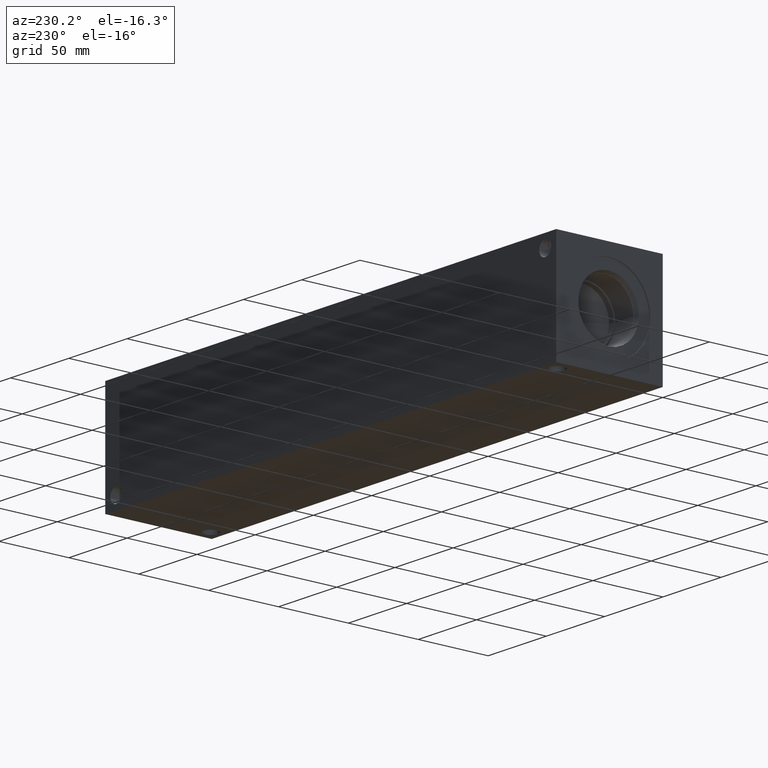
[diagram: clean part render]
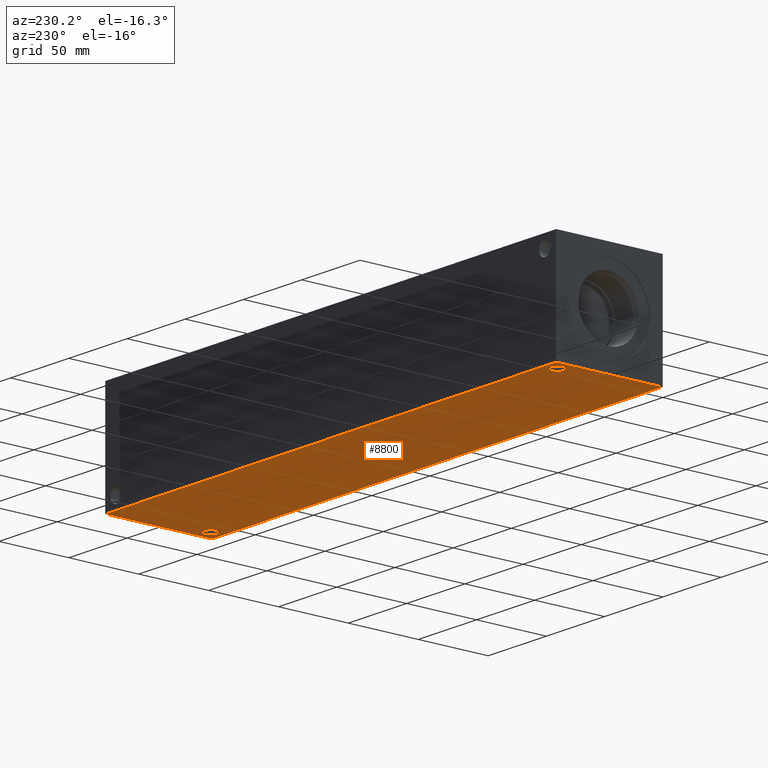
[diagram: same view with one face highlighted and labeled with its STEP entity id]
A machine part, auxiliary view. The second image highlights one B-rep face of the part: STEP entity #8800.
In plain terms, the highlighted planar face has unit normal (0, 0, 1).
Its self-contained STEP definition (entity closure, byte-faithful):
#295=CIRCLE('',#9282,5.1562);
#296=CIRCLE('',#9284,5.1562);
#418=FACE_BOUND('',#1734,.T.);
#419=FACE_BOUND('',#1735,.T.);
#1214=FACE_OUTER_BOUND('',#1733,.T.);
#1733=EDGE_LOOP('',(#7797,#7798,#7799,#7800));
#1734=EDGE_LOOP('',(#7801));
#1735=EDGE_LOOP('',(#7802));
#2498=LINE('',#15583,#3268);
#2501=LINE('',#15588,#3271);
#2503=LINE('',#15592,#3273);
#2505=LINE('',#15595,#3275);
#3268=VECTOR('',#11306,10.);
#3271=VECTOR('',#11311,10.);
#3273=VECTOR('',#11315,10.);
#3275=VECTOR('',#11319,10.);
#4038=VERTEX_POINT('',#15379);
#4039=VERTEX_POINT('',#15383);
#4097=VERTEX_POINT('',#15581);
#4098=VERTEX_POINT('',#15582);
#4099=VERTEX_POINT('',#15587);
#4100=VERTEX_POINT('',#15591);
#5233=EDGE_CURVE('',#4038,#4038,#295,.T.);
#5235=EDGE_CURVE('',#4039,#4039,#296,.T.);
#5327=EDGE_CURVE('',#4097,#4098,#2498,.T.);
#5330=EDGE_CURVE('',#4099,#4097,#2501,.T.);
#5332=EDGE_CURVE('',#4100,#4099,#2503,.T.);
#5334=EDGE_CURVE('',#4098,#4100,#2505,.T.);
#7797=ORIENTED_EDGE('',*,*,#5334,.F.);
#7798=ORIENTED_EDGE('',*,*,#5327,.F.);
#7799=ORIENTED_EDGE('',*,*,#5330,.F.);
#7800=ORIENTED_EDGE('',*,*,#5332,.F.);
#7801=ORIENTED_EDGE('',*,*,#5233,.T.);
#7802=ORIENTED_EDGE('',*,*,#5235,.T.);
#8041=PLANE('',#9393);
#8800=ADVANCED_FACE('',(#1214,#418,#419),#8041,.F.);
#9282=AXIS2_PLACEMENT_3D('',#15381,#11057,#11058);
#9284=AXIS2_PLACEMENT_3D('',#15385,#11062,#11063);
#9393=AXIS2_PLACEMENT_3D('',#15597,#11322,#11323);
#11057=DIRECTION('center_axis',(0.,0.,1.));
#11058=DIRECTION('ref_axis',(1.,0.,0.));
#11062=DIRECTION('center_axis',(0.,0.,1.));
#11063=DIRECTION('ref_axis',(1.,0.,0.));
#11306=DIRECTION('',(0.,-1.,0.));
#11311=DIRECTION('',(-1.,0.,0.));
#11315=DIRECTION('',(0.,1.,0.));
#11319=DIRECTION('',(1.,0.,0.));
#11322=DIRECTION('center_axis',(0.,0.,1.));
#11323=DIRECTION('ref_axis',(1.,0.,0.));
#15379=CARTESIAN_POINT('',(372.6688,8.7376,0.));
#15381=CARTESIAN_POINT('Origin',(377.825,8.7376,0.));
#15383=CARTESIAN_POINT('',(4.3688,67.4624,0.));
#15385=CARTESIAN_POINT('Origin',(9.525,67.4624,0.));
#15581=CARTESIAN_POINT('',(0.,76.2,0.));
#15582=CARTESIAN_POINT('',(0.,0.,0.));
#15583=CARTESIAN_POINT('',(0.,76.2,0.));
#15587=CARTESIAN_POINT('',(387.35,76.2,0.));
#15588=CARTESIAN_POINT('',(387.35,76.2,0.));
#15591=CARTESIAN_POINT('',(387.35,0.,0.));
#15592=CARTESIAN_POINT('',(387.35,0.,0.));
#15595=CARTESIAN_POINT('',(0.,0.,0.));
#15597=CARTESIAN_POINT('Origin',(193.675,38.1,0.));